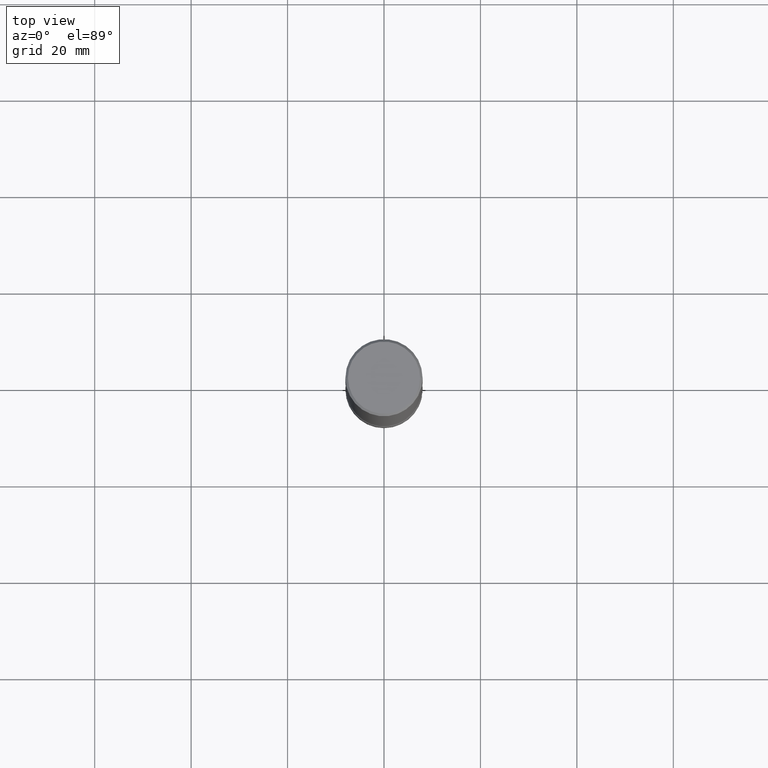
[diagram: clean part render]
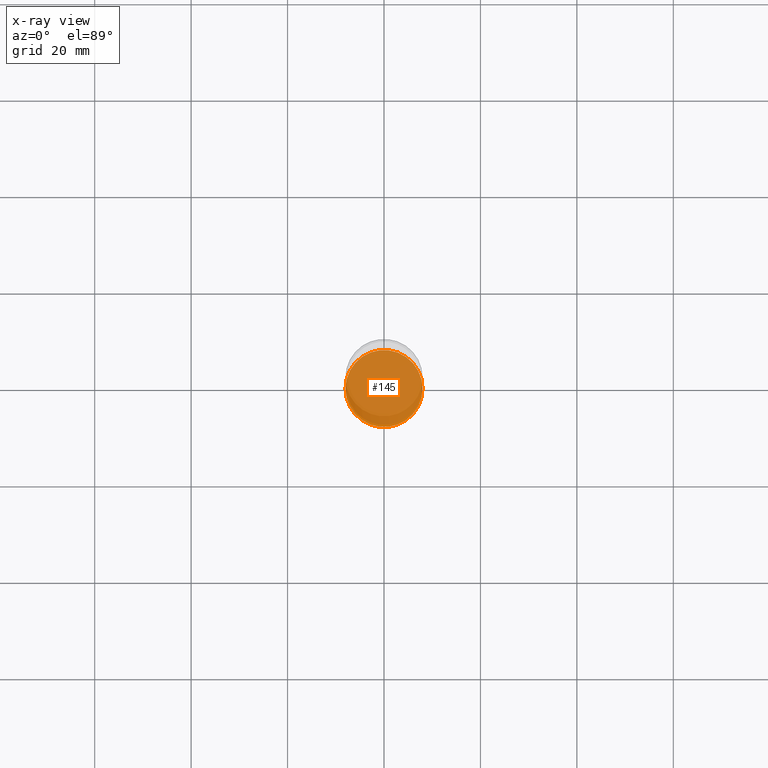
[diagram: x-ray — body ghosted, one internal face saturated and labeled with its STEP entity id]
A machine part, top view, then the same camera in x-ray: the body is ghosted and one INTERNAL B-rep face — a face not visible from any outside direction — is saturated and labeled: STEP entity #145.
In plain terms, the highlighted planar face has unit normal (0, -0, -1).
Its self-contained STEP definition (entity closure, byte-faithful):
#16 = CIRCLE ( 'NONE', #496, 0.3144499999999990081 ) ;
#21 = CARTESIAN_POINT ( 'NONE',  ( -0.3144499999999990081, -1.563350274172963988E-14, -5.118099999999999206 ) ) ;
#39 = FACE_OUTER_BOUND ( 'NONE', #111, .T. ) ;
#111 = EDGE_LOOP ( 'NONE', ( #387, #549 ) ) ;
#112 = EDGE_CURVE ( 'NONE', #194, #266, #16, .T. ) ;
#128 = DIRECTION ( 'NONE',  ( -1.000000000000000000, 6.982962677686265922E-15, -4.876176775795935793E-29 ) ) ;
#145 = ADVANCED_FACE ( 'NONE', ( #39 ), #256, .T. ) ;
#160 = DIRECTION ( 'NONE',  ( 2.445468806185136597E-29, -3.491481338843145583E-15, -1.000000000000000000 ) ) ;
#194 = VERTEX_POINT ( 'NONE', #367 ) ;
#207 = CARTESIAN_POINT ( 'NONE',  ( 2.195792613998564404E-15, 0.3144499999999811335, -5.118100000000000094 ) ) ;
#232 = AXIS2_PLACEMENT_3D ( 'NONE', #250, #421, #458 ) ;
#250 = CARTESIAN_POINT ( 'NONE',  ( 1.251615389693614574E-28, -1.786975064033310244E-14, -5.118099999999999206 ) ) ;
#256 = PLANE ( 'NONE',  #378 ) ;
#266 = VERTEX_POINT ( 'NONE', #21 ) ;
#288 = CIRCLE ( 'NONE', #232, 0.3144499999999990081 ) ;
#303 = DIRECTION ( 'NONE',  ( -1.000000000000000000, 6.982962677686268288E-15, 0.000000000000000000 ) ) ;
#367 = CARTESIAN_POINT ( 'NONE',  ( 0.3144499999999990081, -2.006618451223367915E-14, -5.118099999999999206 ) ) ;
#378 = AXIS2_PLACEMENT_3D ( 'NONE', #207, #514, #128 ) ;
#387 = ORIENTED_EDGE ( 'NONE', *, *, #112, .T. ) ;
#421 = DIRECTION ( 'NONE',  ( 2.445468806185136597E-29, -3.491481338843145583E-15, -1.000000000000000000 ) ) ;
#458 = DIRECTION ( 'NONE',  ( -1.000000000000000000, 6.982962677686268288E-15, 0.000000000000000000 ) ) ;
#496 = AXIS2_PLACEMENT_3D ( 'NONE', #553, #160, #303 ) ;
#514 = DIRECTION ( 'NONE',  ( 2.438088387897960049E-29, -3.491481338843145188E-15, -1.000000000000000000 ) ) ;
#549 = ORIENTED_EDGE ( 'NONE', *, *, #552, .T. ) ;
#552 = EDGE_CURVE ( 'NONE', #266, #194, #288, .T. ) ;
#553 = CARTESIAN_POINT ( 'NONE',  ( 1.251615389693614574E-28, -1.786975064033310244E-14, -5.118099999999999206 ) ) ;